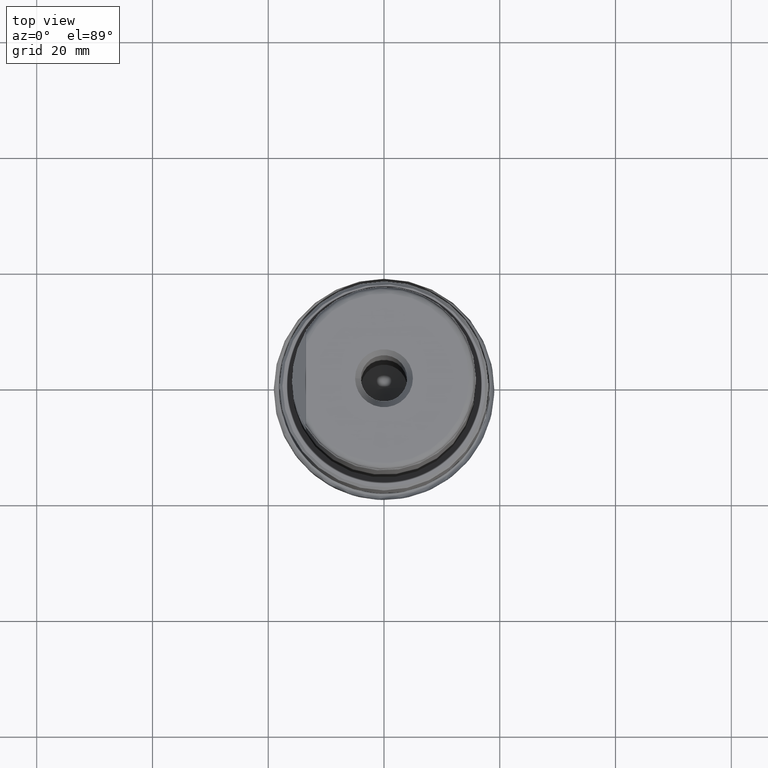
[diagram: clean part render]
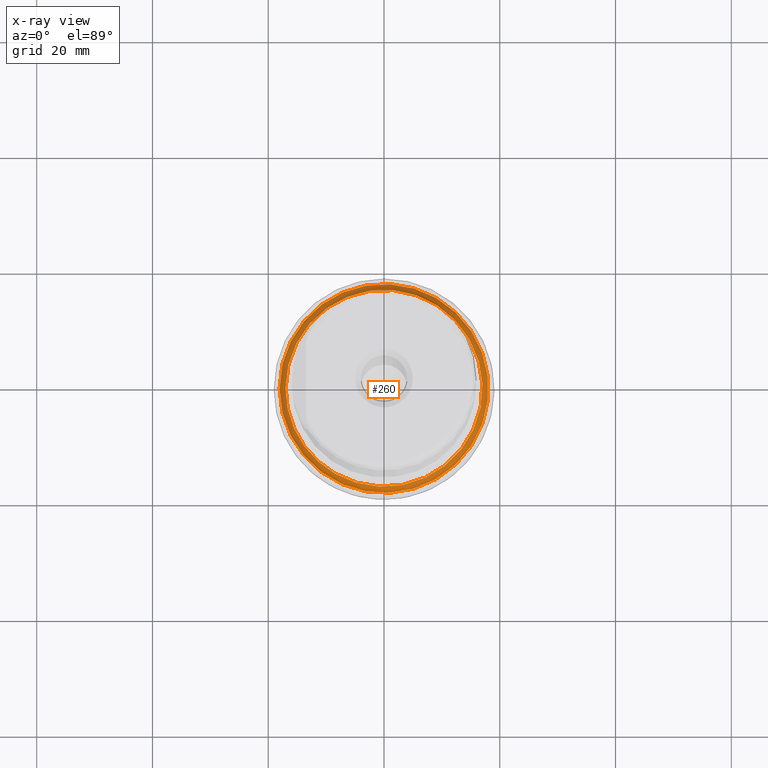
[diagram: x-ray — body ghosted, one internal face saturated and labeled with its STEP entity id]
A machine part, top view, then the same camera in x-ray: the body is ghosted and one INTERNAL B-rep face — a face not visible from any outside direction — is saturated and labeled: STEP entity #260.
In plain terms, the highlighted face is a SurfaceOfRevolution surface.
Its self-contained STEP definition (entity closure, byte-faithful):
#120=SURFACE_OF_REVOLUTION('',#1000,#158);
#158=AXIS1_PLACEMENT('',#2288,#1242);
#260=ADVANCED_FACE('',(#378,#379),#120,.F.);
#378=FACE_BOUND('',#500,.T.);
#379=FACE_BOUND('',#501,.T.);
#500=EDGE_LOOP('',(#668));
#501=EDGE_LOOP('',(#669));
#668=ORIENTED_EDGE('',*,*,#857,.T.);
#669=ORIENTED_EDGE('',*,*,#858,.F.);
#773=VERTEX_POINT('',#2256);
#774=VERTEX_POINT('',#2281);
#857=EDGE_CURVE('',#773,#773,#911,.T.);
#858=EDGE_CURVE('',#774,#774,#912,.T.);
#911=CIRCLE('',#1082,18.0433729127506);
#912=CIRCLE('',#1083,17.0104194861059);
#1000=B_SPLINE_CURVE_WITH_KNOTS('',5,(#2282,#2283,#2284,#2285,#2286,#2287),
 .UNSPECIFIED.,.F.,.F.,(6,6),(0.,1.),.UNSPECIFIED.);
#1082=AXIS2_PLACEMENT_3D('',#2255,#1237,#1238);
#1083=AXIS2_PLACEMENT_3D('',#2280,#1240,#1241);
#1237=DIRECTION('',(0.,0.,-1.));
#1238=DIRECTION('',(-1.,0.,0.));
#1240=DIRECTION('',(0.,0.,-1.));
#1241=DIRECTION('',(-1.,0.,0.));
#1242=DIRECTION('',(0.,0.,-1.));
#2255=CARTESIAN_POINT('',(0.,0.,11.7170911425383));
#2256=CARTESIAN_POINT('',(-18.0433729127506,0.,11.7170911425383));
#2280=CARTESIAN_POINT('',(0.,0.,14.1197341501138));
#2281=CARTESIAN_POINT('',(-17.0104194861059,0.,14.1197341501138));
#2282=CARTESIAN_POINT('',(-8.50520974305356,-14.7314554039984,14.1197341501113));
#2283=CARTESIAN_POINT('',(-8.61215058873997,-14.9166823821317,13.6424032723922));
#2284=CARTESIAN_POINT('',(-8.71704849796207,-15.0983708905121,13.1632415585739));
#2285=CARTESIAN_POINT('',(-8.82010797483287,-15.2768751406538,12.6824696716867));
#2286=CARTESIAN_POINT('',(-8.92156043068873,-15.4525959487488,12.2003303779654));
#2287=CARTESIAN_POINT('',(-9.02168645637539,-15.626019312398,11.7170911425383));
#2288=CARTESIAN_POINT('',(0.,0.,0.));